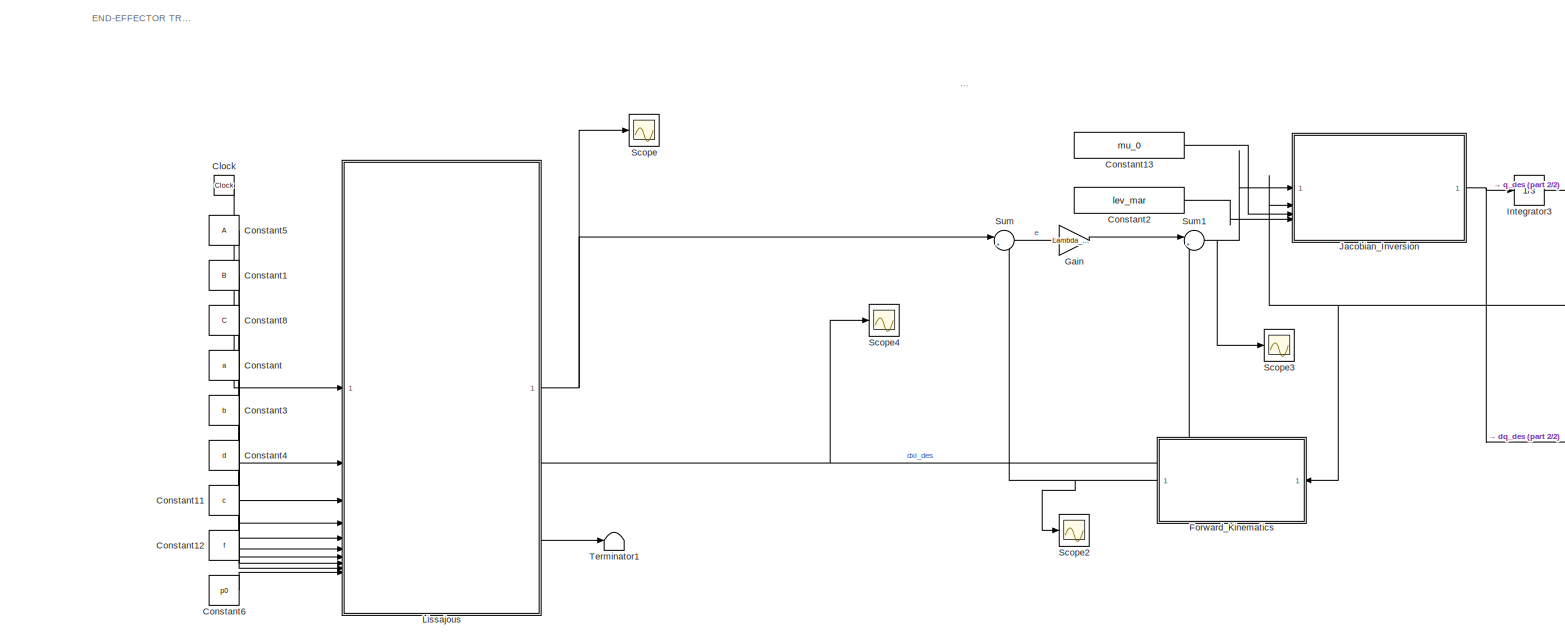
[diagram: root canvas - part 1/2, left side, full height]
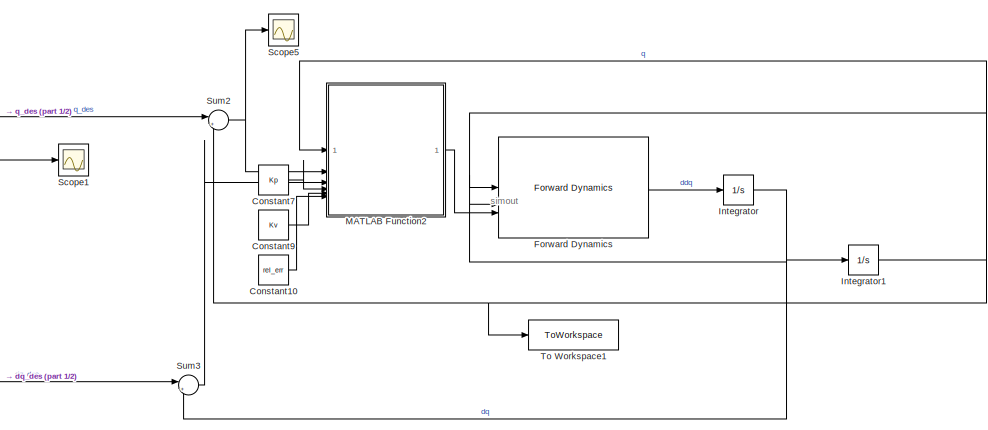
[diagram: root canvas - part 2/2, middle right region]
MODEL slx_29e039416ba2
KIND model
CONFIG AbsTol = auto
CONFIG EnableMultiTasking = off
CONFIG FixedStep = auto
CONFIG MaxStep = auto
CONFIG MinStep = auto
CONFIG RelTol = 1e-3
CONFIG SampleTimeConstraint = Unconstrained
CONFIG SolverName = VariableStepAuto
CONFIG StartTime = 0.0
CONFIG StopTime = 10.0
BLOCK [Clock] Clock
BLOCK [Constant] Constant
  Value = a
BLOCK [Constant] Constant1
  Value = B
BLOCK [Constant] Constant10
  Value = rel_err
BLOCK [Constant] Constant11
  Value = c
BLOCK [Constant] Constant12
  Value = f
BLOCK [Constant] Constant13
  Value = mu_0
BLOCK [Constant] Constant2
  Value = lev_mar
BLOCK [Constant] Constant3
  Value = b
BLOCK [Constant] Constant4
  Value = d
BLOCK [Constant] Constant5
  Value = A
BLOCK [Constant] Constant6
  Value = p0
BLOCK [Constant] Constant7
  Value = Kp
  VectorParams1D = off
BLOCK [Constant] Constant8
  Value = C
BLOCK [Constant] Constant9
  Value = Kv
  VectorParams1D = off
BLOCK [Reference] Forward Dynamics  REF=robotmaniplib/Forward Dynamics
  SourceBlock = robotmaniplib/Forward Dynamics
  SourceType = Forward Dynamics
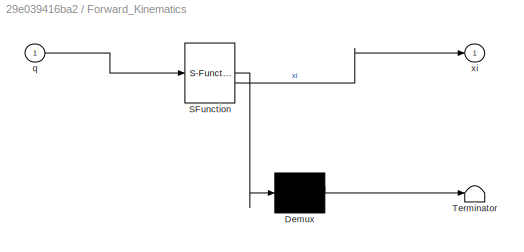
BLOCK [SubSystem] Forward_Kinematics
  ErrorFcn = Stateflow.Translate.translate
  PermitHierarchicalResolution = ExplicitOnly
  SFBlockType = MATLAB Function
  TreatAsAtomicUnit = on
BLOCK [Demux] Forward_Kinematics/ Demux 
  Outputs = 1
BLOCK [S-Function] Forward_Kinematics/ SFunction 
  EnableBusSupport = on
  FunctionName = sf_sfun
  PortCounts = [1 2]
  SFcnIsStateOwnerBlock = off
  SFunctionDeploymentMode = off
  Tag = Stateflow S-Function 1
BLOCK [Terminator] Forward_Kinematics/ Terminator 
BLOCK [Inport] Forward_Kinematics/q
BLOCK [Outport] Forward_Kinematics/xi
BLOCK [Gain] Gain
  Gain = Lambda_IK
  Multiplication = Matrix(K*u)
BLOCK [Integrator] Integrator
  InitialCondition = dq0
BLOCK [Integrator] Integrator1
  InitialCondition = q0
BLOCK [Integrator] Integrator3
  InitialCondition = q0
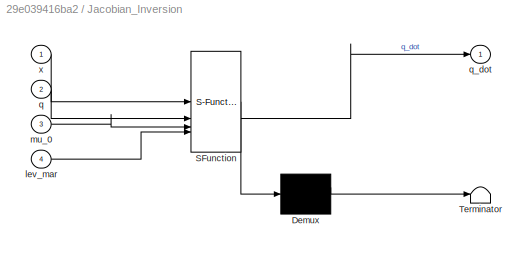
BLOCK [SubSystem] Jacobian_Inversion
  ErrorFcn = Stateflow.Translate.translate
  PermitHierarchicalResolution = ExplicitOnly
  SFBlockType = MATLAB Function
  TreatAsAtomicUnit = on
BLOCK [Demux] Jacobian_Inversion/ Demux 
  Outputs = 1
BLOCK [S-Function] Jacobian_Inversion/ SFunction 
  EnableBusSupport = on
  FunctionName = sf_sfun
  PortCounts = [4 2]
  SFcnIsStateOwnerBlock = off
  SFunctionDeploymentMode = off
  Tag = Stateflow S-Function 2
BLOCK [Terminator] Jacobian_Inversion/ Terminator 
BLOCK [Inport] Jacobian_Inversion/lev_mar
  Port = 4
BLOCK [Inport] Jacobian_Inversion/mu_0
  Port = 3
BLOCK [Inport] Jacobian_Inversion/q
  Port = 2
BLOCK [Outport] Jacobian_Inversion/q_dot
BLOCK [Inport] Jacobian_Inversion/x
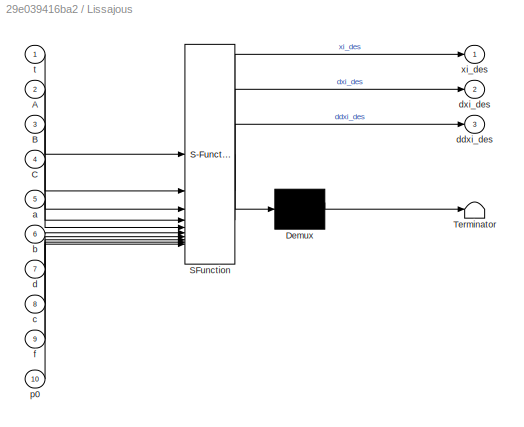
BLOCK [SubSystem] Lissajous
  ErrorFcn = Stateflow.Translate.translate
  PermitHierarchicalResolution = ExplicitOnly
  SFBlockType = MATLAB Function
  TreatAsAtomicUnit = on
BLOCK [Demux] Lissajous/ Demux 
  Outputs = 1
BLOCK [S-Function] Lissajous/ SFunction 
  EnableBusSupport = on
  FunctionName = sf_sfun
  PortCounts = [10 4]
  SFcnIsStateOwnerBlock = off
  SFunctionDeploymentMode = off
  Tag = Stateflow S-Function 3
BLOCK [Terminator] Lissajous/ Terminator 
BLOCK [Inport] Lissajous/A
  Port = 2
BLOCK [Inport] Lissajous/B
  Port = 3
BLOCK [Inport] Lissajous/C
  Port = 4
BLOCK [Inport] Lissajous/a
  Port = 5
BLOCK [Inport] Lissajous/b
  Port = 6
BLOCK [Inport] Lissajous/c
  Port = 8
BLOCK [Inport] Lissajous/d
  Port = 7
BLOCK [Outport] Lissajous/ddxi_des
  Port = 3
  VectorParamsAs1DForOutWhenUnconnected = off
BLOCK [Outport] Lissajous/dxi_des
  Port = 2
  VectorParamsAs1DForOutWhenUnconnected = off
BLOCK [Inport] Lissajous/f
  Port = 9
BLOCK [Inport] Lissajous/p0
  Port = 10
BLOCK [Inport] Lissajous/t
BLOCK [Outport] Lissajous/xi_des
  VectorParamsAs1DForOutWhenUnconnected = off
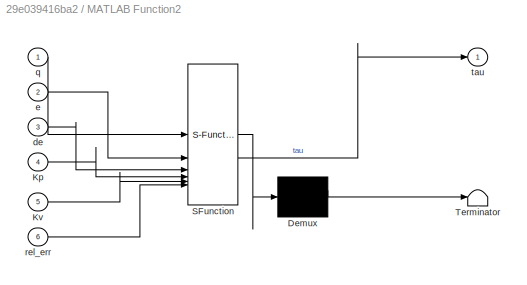
BLOCK [SubSystem] MATLAB Function2
  ErrorFcn = Stateflow.Translate.translate
  PermitHierarchicalResolution = ExplicitOnly
  SFBlockType = MATLAB Function
  TreatAsAtomicUnit = on
BLOCK [Demux] MATLAB Function2/ Demux 
  Outputs = 1
BLOCK [S-Function] MATLAB Function2/ SFunction 
  EnableBusSupport = on
  FunctionName = sf_sfun
  PortCounts = [6 2]
  SFcnIsStateOwnerBlock = off
  SFunctionDeploymentMode = off
  Tag = Stateflow S-Function 4
BLOCK [Terminator] MATLAB Function2/ Terminator 
BLOCK [Inport] MATLAB Function2/Kp
  Port = 4
BLOCK [Inport] MATLAB Function2/Kv
  Port = 5
BLOCK [Inport] MATLAB Function2/de
  Port = 3
BLOCK [Inport] MATLAB Function2/e
  Port = 2
BLOCK [Inport] MATLAB Function2/q
BLOCK [Inport] MATLAB Function2/rel_err
  Port = 6
BLOCK [Outport] MATLAB Function2/tau
BLOCK [Scope] Scope
  Floating = off
  NumInputPorts = 1
  ScopeSpecificationString = Simulink.scopes.TimeScopeBlockCfg('CurrentConfiguration', extmgr.ConfigurationSet(extmgr.Configuration('Core','General UI',true),extmgr.Configuration('Core','Source UI',true),extmgr.Configuration('Sources','WiredSimulink',true,'DataLoggingVariableName','ScopeData2'),extmgr.Configuration('Visuals','Time Domain',true,'SerializedDisplays',{struct('MinYLimReal','-0.19996','MaxYLimReal','0.79995','YLab...<+1391ch>
BLOCK [Scope] Scope1
  Floating = off
  NumInputPorts = 1
  ScopeSpecificationString = Simulink.scopes.TimeScopeBlockCfg('CurrentConfiguration', extmgr.ConfigurationSet(extmgr.Configuration('Core','General UI',true),extmgr.Configuration('Core','Source UI',true),extmgr.Configuration('Sources','WiredSimulink',true,'DataLoggingVariableName','ScopeData3'),extmgr.Configuration('Visuals','Time Domain',true,'SerializedDisplays',{struct('MinYLimReal','-8.4696','MaxYLimReal','5.87106','YLabe...<+1451ch>
BLOCK [Scope] Scope2
  Floating = off
  NumInputPorts = 1
  ScopeSpecificationString = Simulink.scopes.TimeScopeBlockCfg('CurrentConfiguration', extmgr.ConfigurationSet(extmgr.Configuration('Core','General UI',true),extmgr.Configuration('Core','Source UI',true),extmgr.Configuration('Sources','WiredSimulink',true,'DataLoggingVariableName','ScopeData4'),extmgr.Configuration('Visuals','Time Domain',true,'SerializedDisplays',{struct('MinYLimReal','-0.36467','MaxYLimReal','1.56322','YLab...<+1459ch>
BLOCK [Scope] Scope3
  Floating = off
  NumInputPorts = 1
  ScopeSpecificationString = Simulink.scopes.TimeScopeBlockCfg('CurrentConfiguration', extmgr.ConfigurationSet(extmgr.Configuration('Core','General UI',true),extmgr.Configuration('Core','Source UI',true),extmgr.Configuration('Sources','WiredSimulink',true),extmgr.Configuration('Visuals','Time Domain',true,'SerializedDisplays',{struct('MinYLimReal','-0.99847','MaxYLimReal','0.99983','YLabelReal','','MinYLimMag','0.00000','MaxY...<+1382ch>
BLOCK [Scope] Scope4
  Floating = off
  NumInputPorts = 1
  ScopeSpecificationString = Simulink.scopes.TimeScopeBlockCfg('CurrentConfiguration', extmgr.ConfigurationSet(extmgr.Configuration('Core','General UI',true),extmgr.Configuration('Core','Source UI',true),extmgr.Configuration('Sources','WiredSimulink',true,'DataLoggingVariableName','ScopeData1'),extmgr.Configuration('Visuals','Time Domain',true,'SerializedDisplays',{struct('MinYLimReal','-0.12497','MaxYLimReal','0.125','YLabel...<+1416ch>
BLOCK [Scope] Scope5
  Floating = off
  NumInputPorts = 1
  ScopeSpecificationString = Simulink.scopes.TimeScopeBlockCfg('CurrentConfiguration', extmgr.ConfigurationSet(extmgr.Configuration('Core','General UI',true),extmgr.Configuration('Core','Source UI',true),extmgr.Configuration('Sources','WiredSimulink',true,'DataLoggingVariableName','ScopeData5'),extmgr.Configuration('Visuals','Time Domain',true,'SerializedDisplays',{struct('MinYLimReal','-6.66712','MaxYLimReal','5.06633','YLab...<+1448ch>
BLOCK [Sum] Sum
  Inputs = |+-
BLOCK [Sum] Sum1
  Inputs = |++
BLOCK [Sum] Sum2
  Inputs = |+-
BLOCK [Sum] Sum3
  Inputs = |+-
BLOCK [Terminator] Terminator1
BLOCK [ToWorkspace] To Workspace1
  FixptAsFi = on
  MaxDataPoints = inf
  SampleTime = -1
  SaveFormat = Timeseries
  VariableName = simout
ANNOTATION (root): INVERSE KINEMATICS
ANNOTATION (root): END-EFFECTOR TRAJECTORY
ANNOTATION (root): simout
LINE Clock:1 -> Lissajous:1
LINE Constant10:1 -> MATLAB Function2:6
LINE Constant11:1 -> Lissajous:8
LINE Constant12:1 -> Lissajous:9
LINE Constant13:1 -> Jacobian_Inversion:3
LINE Constant1:1 -> Lissajous:3
LINE Constant2:1 -> Jacobian_Inversion:4
LINE Constant3:1 -> Lissajous:6
LINE Constant4:1 -> Lissajous:7
LINE Constant5:1 -> Lissajous:2
LINE Constant6:1 -> Lissajous:10
LINE Constant7:1 -> MATLAB Function2:4
LINE Constant8:1 -> Lissajous:4
LINE Constant9:1 -> MATLAB Function2:5
LINE Constant:1 -> Lissajous:5
LINE Forward Dynamics:1 -> Integrator:1
NET Forward_Kinematics:1 -> Scope2:1, Sum:2
LINE Gain:1 -> Sum1:1
NET Integrator1:1 -> Forward Dynamics:1, MATLAB Function2:1, Sum2:2, To Workspace1:1
NET Integrator3:1 -> Forward_Kinematics:1, Jacobian_Inversion:2, Scope1:1, Sum2:1
NET Integrator:1 -> Forward Dynamics:2, Integrator1:1, Sum3:2
NET Jacobian_Inversion:1 -> Integrator3:1, Sum3:1
NET Lissajous:1 -> Scope:1, Sum:1
NET Lissajous:2 -> Scope4:1, Sum1:2
LINE Lissajous:3 -> Terminator1:1
LINE MATLAB Function2:1 -> Forward Dynamics:3
NET Sum1:1 -> Jacobian_Inversion:1, Scope3:1
NET Sum2:1 -> MATLAB Function2:2, Scope5:1
LINE Sum3:1 -> MATLAB Function2:3
LINE Sum:1 -> Gain:1
note: NET lines group one-source signal fan-out (src -> all destinations, sorted); 1:1 wires keep LINE
CHART Forward_Kinematics states=1 transitions=1
  STATE_LABEL 'eML_blk_kernel()'
  STATE_LABEL "SCRIPT:\nfunction xi = forwardKinematics(q)\n    % q1 = q(1);\n    % q2 = q(2);\n    % q3 = q(3);\n    % q4 = q(4);\n    % q5 = q(5);\n    % q6 = q(6);\n    % q7 = q(7);\n    % \n    % T01r = [cos(q1), -sin(q1), 0;\n    %        sin(q1) , cos(q1), 0;\n    %         0, 0, 1] * [1, 0, 0;\n    %                     0, 0, -1;\n    %                     0, 1, 0];\n    % T01t = [0 0 0.36]';\n    % \n    % T12r = [cos(q2...<+1403ch>"
CHART Jacobian_Inversion states=1 transitions=1
  STATE_LABEL 'eML_blk_kernel()'
  STATE_LABEL "SCRIPT:\nfunction q_dot = jacobian_inversion(x, q, mu_0, lev_mar)\n    \n    % Getting jacobian and forward kinematics for current guess\n    % coder. extrinsic(' get_analytic_jacobian ');\n    J = get_analytic_jacobian(q);\n    \n    % Jacobian inversion\n    % J_star = zeros(size(J.')); % preallocating\n    % if lev_mar\n        % J_star = inv(J.'*J + mu_0*diag(diag(J.'*J)))*J.';\n    % else\n        % J_st...<+76ch>"
CHART Lissajous states=1 transitions=1
  STATE_LABEL 'eML_blk_kernel()'
  STATE_LABEL 'SCRIPT:\nfunction [xi_des, dxi_des, ddxi_des] = lissajous(t,A,B,C,a,b,d,c,f,p0)\n% \n% xi_des = [A*sin(t); B*sin(b*t+d); C*sin(c*t+f)] + p0;\n% dxi_des = [A*cos(t); B*b*cos(b*t+d); C*c*cos(c*t+f)];\n% ddxi_des = [-A*sin(t); -B*b^2*sin(b*t+d); -C*c^2*sin(c*t+f)];\n% \n% xi_des = [0; B*sin(b*t); C*sin(c*t+f)] + p0;\n% dxi_des = [0; B*b*cos(b*t); C*c*cos(c*t+f)];\n% ddxi_des = [0; -B*b^2*sin(b*t); -C*c^2*sin(...<+134ch>'
CHART MATLAB Function2 states=1 transitions=1
  STATE_LABEL 'eML_blk_kernel()'
  STATE_LABEL 'SCRIPT:\nfunction tau = PD_control(q, e, de, Kp, Kv, rel_err)\n   \n    G = get_gravity_matrix(q);\n    % Adding uncertainty\n    G = G.*(1 + rel_err);\n    \n   \n    tau = Kv*de + Kp*e + G;\n    \nend\n'
CHART  states=0 transitions=0
CHART  states=0 transitions=0
CHART  states=0 transitions=0
CHART  states=0 transitions=0
